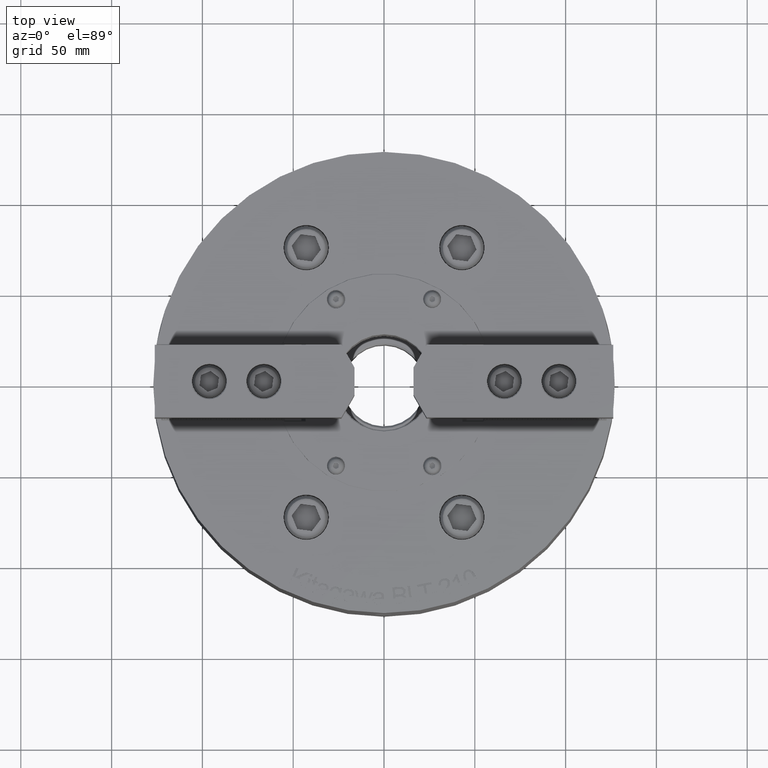
[diagram: clean part render]
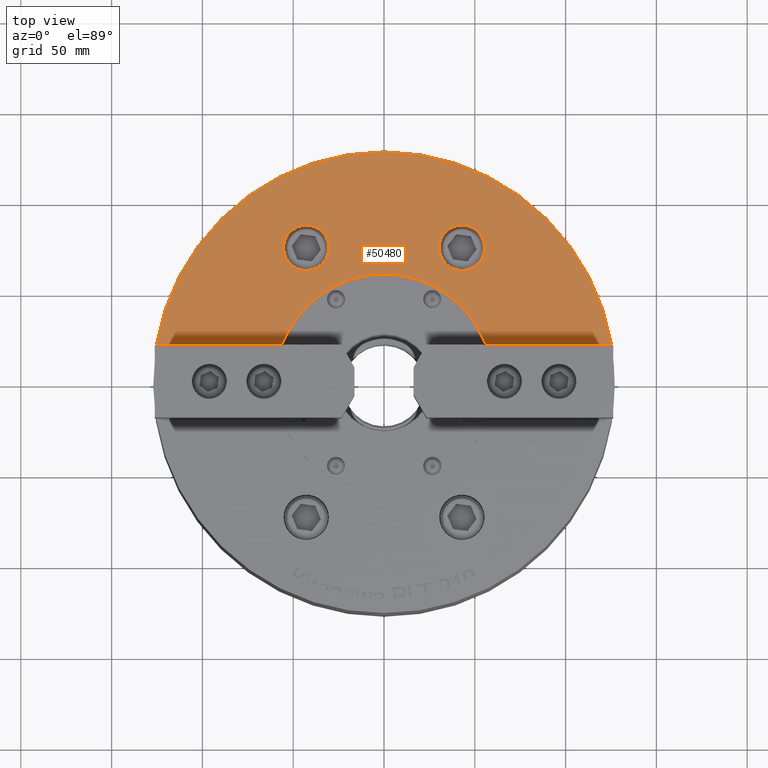
[diagram: same view with one face highlighted and labeled with its STEP entity id]
A machine part, top view. The second image highlights one B-rep face of the part: STEP entity #50480.
In plain terms, the highlighted planar face has unit normal (0, 0, -1).
Its self-contained STEP definition (entity closure, byte-faithful):
#1256=CIRCLE('',#52740,60.);
#1278=CIRCLE('',#52906,12.5);
#1283=CIRCLE('',#52914,12.5);
#1307=CIRCLE('',#52957,127.);
#3076=ORIENTED_EDGE('',*,*,#18236,.T.);
#3077=ORIENTED_EDGE('',*,*,#18174,.T.);
#3078=ORIENTED_EDGE('',*,*,#18237,.T.);
#3079=ORIENTED_EDGE('',*,*,#18209,.F.);
#3080=ORIENTED_EDGE('',*,*,#18238,.F.);
#3081=ORIENTED_EDGE('',*,*,#17717,.F.);
#3082=ORIENTED_EDGE('',*,*,#18185,.T.);
#3083=ORIENTED_EDGE('',*,*,#18190,.T.);
#17717=EDGE_CURVE('',#25469,#25470,#1256,.T.);
#18174=EDGE_CURVE('',#25781,#25780,#30679,.T.);
#18185=EDGE_CURVE('',#25794,#25794,#1278,.T.);
#18190=EDGE_CURVE('',#25799,#25799,#1283,.T.);
#18209=EDGE_CURVE('',#25817,#25818,#30685,.T.);
#18236=EDGE_CURVE('',#25469,#25781,#30703,.T.);
#18237=EDGE_CURVE('',#25780,#25818,#1307,.T.);
#18238=EDGE_CURVE('',#25470,#25817,#30704,.T.);
#25469=VERTEX_POINT('',#70123);
#25470=VERTEX_POINT('',#70125);
#25780=VERTEX_POINT('',#73340);
#25781=VERTEX_POINT('',#73342);
#25794=VERTEX_POINT('',#73376);
#25799=VERTEX_POINT('',#73389);
#25817=VERTEX_POINT('',#73435);
#25818=VERTEX_POINT('',#73437);
#30679=LINE('',#73341,#37118);
#30685=LINE('',#73436,#37124);
#30703=LINE('',#73488,#37142);
#30704=LINE('',#73490,#37143);
#37118=VECTOR('',#57079,1000.);
#37124=VECTOR('',#57189,1000.);
#37142=VECTOR('',#57243,1000.);
#37143=VECTOR('',#57246,1000.);
#43410=EDGE_LOOP('',(#3076,#3077,#3078,#3079,#3080,#3081));
#43411=EDGE_LOOP('',(#3082));
#43412=EDGE_LOOP('',(#3083));
#46101=FACE_BOUND('',#43410,.T.);
#46102=FACE_BOUND('',#43411,.T.);
#46103=FACE_BOUND('',#43412,.T.);
#48666=PLANE('',#52956);
#50480=ADVANCED_FACE('',(#46101,#46102,#46103),#48666,.F.);
#52740=AXIS2_PLACEMENT_3D('',#70124,#56458,#56459);
#52906=AXIS2_PLACEMENT_3D('',#73375,#57119,#57120);
#52914=AXIS2_PLACEMENT_3D('',#73388,#57135,#57136);
#52956=AXIS2_PLACEMENT_3D('',#73487,#57241,#57242);
#52957=AXIS2_PLACEMENT_3D('',#73489,#57244,#57245);
#56458=DIRECTION('',(-2.34290668463255E-15,0.,1.));
#56459=DIRECTION('',(1.,0.,2.34290668463255E-15));
#57079=DIRECTION('',(1.,1.22460635382238E-16,2.34290668463255E-15));
#57119=DIRECTION('',(2.34290668463255E-15,0.,-1.));
#57120=DIRECTION('',(1.,0.,2.34290668463255E-15));
#57135=DIRECTION('',(2.34290668463255E-15,0.,-1.));
#57136=DIRECTION('',(1.,0.,2.34290668463255E-15));
#57189=DIRECTION('',(-1.,0.,-2.34290668463255E-15));
#57241=DIRECTION('',(2.34290668463255E-15,0.,-1.));
#57242=DIRECTION('',(-1.,0.,-2.34290668463255E-15));
#57243=DIRECTION('',(1.,1.22460635382238E-16,2.34290668463255E-15));
#57244=DIRECTION('',(-2.34290668463255E-15,0.,1.));
#57245=DIRECTION('',(1.,0.,2.34290668463255E-15));
#57246=DIRECTION('',(-1.,0.,-2.34290668463255E-15));
#70123=CARTESIAN_POINT('',(56.2049819855856,21.,1.29023181918976E-13));
#70124=CARTESIAN_POINT('',(1.0404595783309E-29,0.,-4.44089209850063E-15));
#70125=CARTESIAN_POINT('',(-56.2049819855856,21.,-1.32561828074589E-13));
#73340=CARTESIAN_POINT('',(125.251746494809,21.,2.92574354053682E-13));
#73341=CARTESIAN_POINT('',(-14.,21.,-3.36794936557639E-14));
#73342=CARTESIAN_POINT('',(122.5,21.,2.85236745789681E-13));
#73375=CARTESIAN_POINT('',(42.8625,74.240027739421,3.07969662684086E-13));
#73376=CARTESIAN_POINT('',(55.3625,74.240027739421,3.37255996241993E-13));
#73388=CARTESIAN_POINT('',(-42.8625,74.240027739421,-9.37216883961644E-14));
#73389=CARTESIAN_POINT('',(-30.3625,74.240027739421,-6.44353548382575E-14));
#73435=CARTESIAN_POINT('',(-122.5,21.0000000000003,-2.87080282506194E-13));
#73436=CARTESIAN_POINT('',(14.,21.,3.19218935139476E-14));
#73437=CARTESIAN_POINT('',(-125.251746494809,21.,-2.94331954195499E-13));
#73487=CARTESIAN_POINT('',(-127.,0.,-3.00208995033038E-13));
#73488=CARTESIAN_POINT('',(-14.,21.,-3.36794936557639E-14));
#73489=CARTESIAN_POINT('',(2.05894656058624E-30,0.,-8.78800070908139E-16));
#73490=CARTESIAN_POINT('',(14.,21.,3.19218935139476E-14));